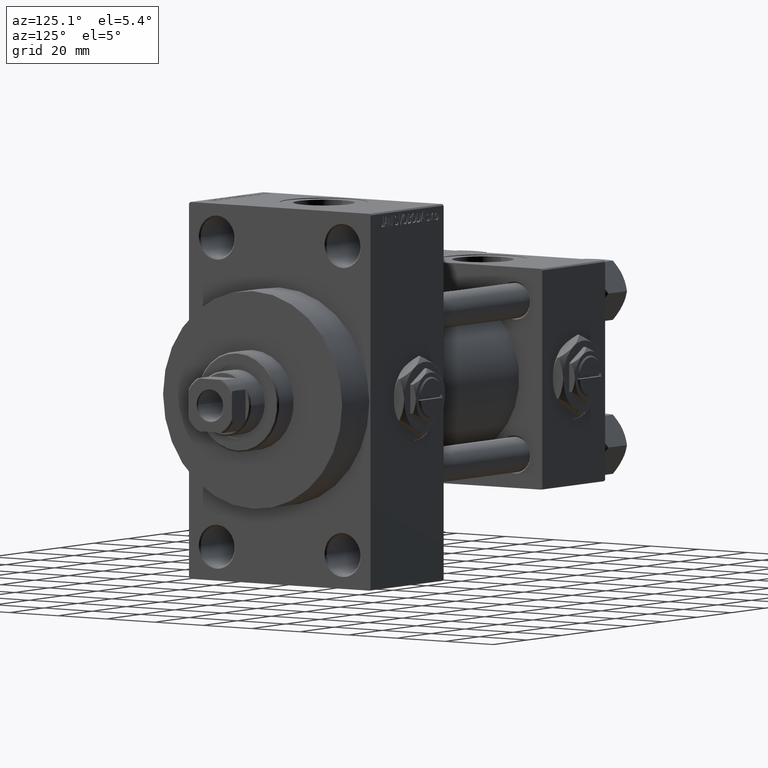
[diagram: clean part render]
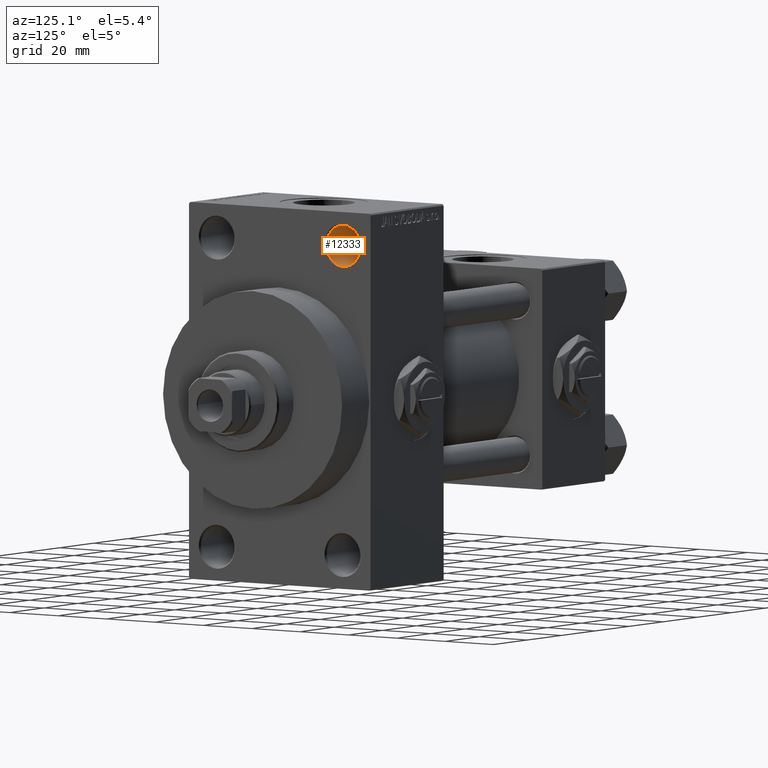
[diagram: same view with one face highlighted and labeled with its STEP entity id]
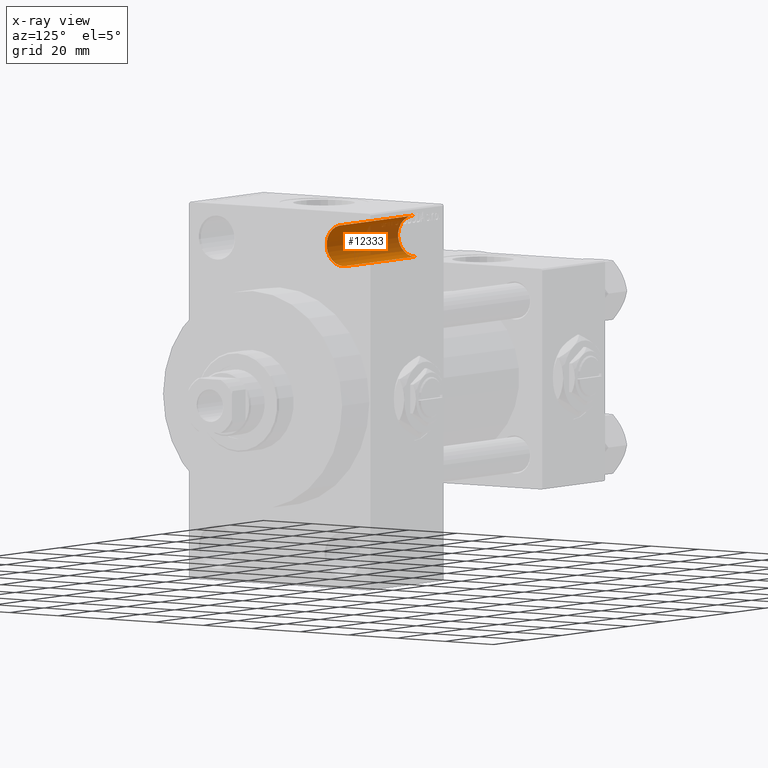
[diagram: x-ray of the same camera — body ghosted, the highlighted face saturated]
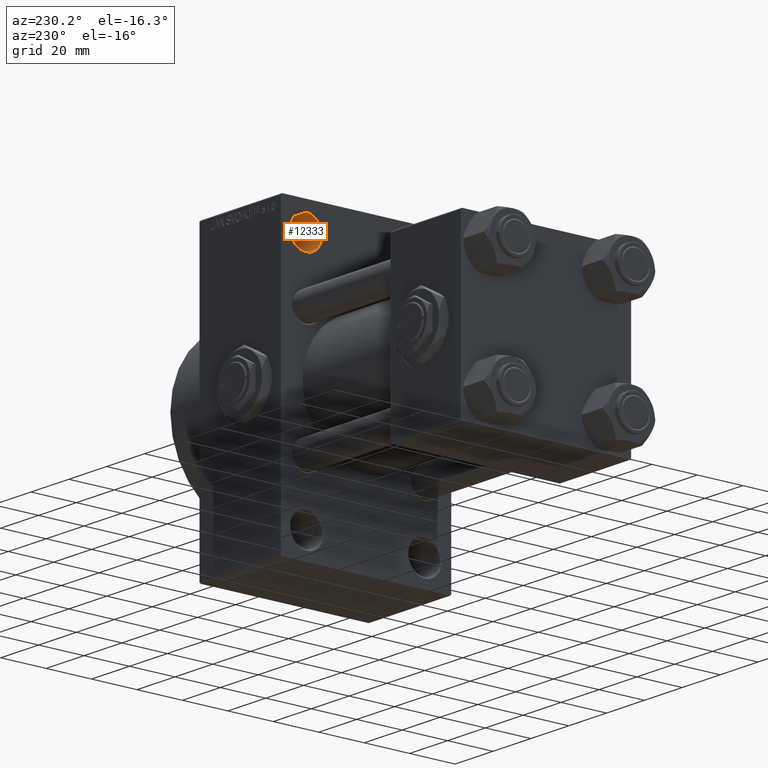
[diagram: same view with one face highlighted and labeled with its STEP entity id]
A machine part, auxiliary view. The second image highlights one B-rep face of the part: STEP entity #12333.
The next image is the same camera in x-ray: the body ghosted, the highlighted face saturated — about 34% of this face is hidden behind the body in this view.
A second angle (auxiliary view) of the same face is appended — the face is thin or edge-on in the first view.
In plain terms, the highlighted cylindrical surface (edge-blend (fillet) strip) has radius 7 mm, axis along (1, 0, 0).
Its self-contained STEP definition (entity closure, byte-faithful):
#753 = CARTESIAN_POINT ( 'NONE',  ( 75.20101012677666574, 26.00000000000000000, 45.49999999999999289 ) ) ;
#1201 = DIRECTION ( 'NONE',  ( 1.000000000000000000, -0.000000000000000000, -0.000000000000000000 ) ) ;
#1685 = VECTOR ( 'NONE', #1201, 1000.000000000000000 ) ;
#3228 = ORIENTED_EDGE ( 'NONE', *, *, #27350, .T. ) ;
#4322 = EDGE_CURVE ( 'NONE', #38457, #39921, #47197, .T. ) ;
#5414 = VERTEX_POINT ( 'NONE', #46841 ) ;
#7263 = DIRECTION ( 'NONE',  ( 1.000000000000000000, -0.000000000000000000, -0.000000000000000000 ) ) ;
#7466 = DIRECTION ( 'NONE',  ( 1.000000000000000000, -0.000000000000000000, -0.000000000000000000 ) ) ;
#10893 = CARTESIAN_POINT ( 'NONE',  ( 137.5000000000000000, 26.00000000000000000, 52.49999999999999289 ) ) ;
#12333 = ADVANCED_FACE ( 'NONE', ( #33672 ), #48905, .F. ) ;
#13743 = AXIS2_PLACEMENT_3D ( 'NONE', #15152, #37616, #30119 ) ;
#14681 = EDGE_CURVE ( 'NONE', #38457, #14682, #45859, .T. ) ;
#14682 = VERTEX_POINT ( 'NONE', #18907 ) ;
#15105 = DIRECTION ( 'NONE',  ( 0.000000000000000000, 0.000000000000000000, 1.000000000000000000 ) ) ;
#15152 = CARTESIAN_POINT ( 'NONE',  ( 95.49999999999997158, 26.00000000000000000, 52.49999999999999289 ) ) ;
#16411 = VECTOR ( 'NONE', #7466, 1000.000000000000000 ) ;
#18907 = CARTESIAN_POINT ( 'NONE',  ( 137.5000000000000000, 26.00000000000000000, 45.49999999999999289 ) ) ;
#20088 = CARTESIAN_POINT ( 'NONE',  ( 75.20101012677666574, 26.00000000000000000, 59.49999999999999289 ) ) ;
#22446 = DIRECTION ( 'NONE',  ( 0.000000000000000000, 0.000000000000000000, -1.000000000000000000 ) ) ;
#23373 = AXIS2_PLACEMENT_3D ( 'NONE', #10893, #26093, #15105 ) ;
#26093 = DIRECTION ( 'NONE',  ( 1.000000000000000000, 0.000000000000000000, 0.000000000000000000 ) ) ;
#27350 = EDGE_CURVE ( 'NONE', #39921, #5414, #43565, .T. ) ;
#29319 = CARTESIAN_POINT ( 'NONE',  ( 95.49999999999997158, 26.00000000000000000, 45.49999999999999289 ) ) ;
#29813 = ORIENTED_EDGE ( 'NONE', *, *, #14681, .F. ) ;
#29938 = CARTESIAN_POINT ( 'NONE',  ( 75.20101012677666574, 26.00000000000000000, 52.49999999999999289 ) ) ;
#30119 = DIRECTION ( 'NONE',  ( 0.000000000000000000, 0.000000000000000000, 1.000000000000000000 ) ) ;
#32215 = EDGE_LOOP ( 'NONE', ( #38333, #3228, #48126, #29813 ) ) ;
#33672 = FACE_OUTER_BOUND ( 'NONE', #32215, .T. ) ;
#35526 = CARTESIAN_POINT ( 'NONE',  ( 95.49999999999997158, 26.00000000000000000, 59.49999999999999289 ) ) ;
#37616 = DIRECTION ( 'NONE',  ( -1.000000000000000000, -0.000000000000000000, -0.000000000000000000 ) ) ;
#37728 = CIRCLE ( 'NONE', #23373, 6.999999999999999112 ) ;
#37849 = AXIS2_PLACEMENT_3D ( 'NONE', #29938, #7263, #22446 ) ;
#38333 = ORIENTED_EDGE ( 'NONE', *, *, #4322, .T. ) ;
#38457 = VERTEX_POINT ( 'NONE', #29319 ) ;
#39921 = VERTEX_POINT ( 'NONE', #35526 ) ;
#43565 = LINE ( 'NONE', #20088, #1685 ) ;
#44330 = EDGE_CURVE ( 'NONE', #5414, #14682, #37728, .T. ) ;
#45859 = LINE ( 'NONE', #753, #16411 ) ;
#46841 = CARTESIAN_POINT ( 'NONE',  ( 137.5000000000000000, 26.00000000000000000, 59.49999999999999289 ) ) ;
#47197 = CIRCLE ( 'NONE', #13743, 6.999999999999999112 ) ;
#48126 = ORIENTED_EDGE ( 'NONE', *, *, #44330, .T. ) ;
#48905 = CYLINDRICAL_SURFACE ( 'NONE', #37849, 6.999999999999999112 ) ;